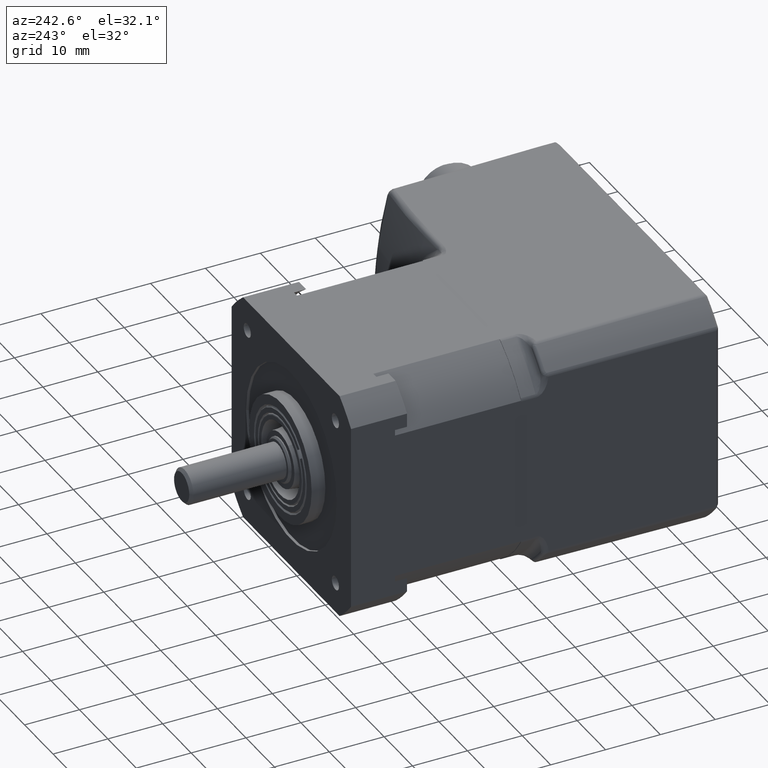
[diagram: clean part render]
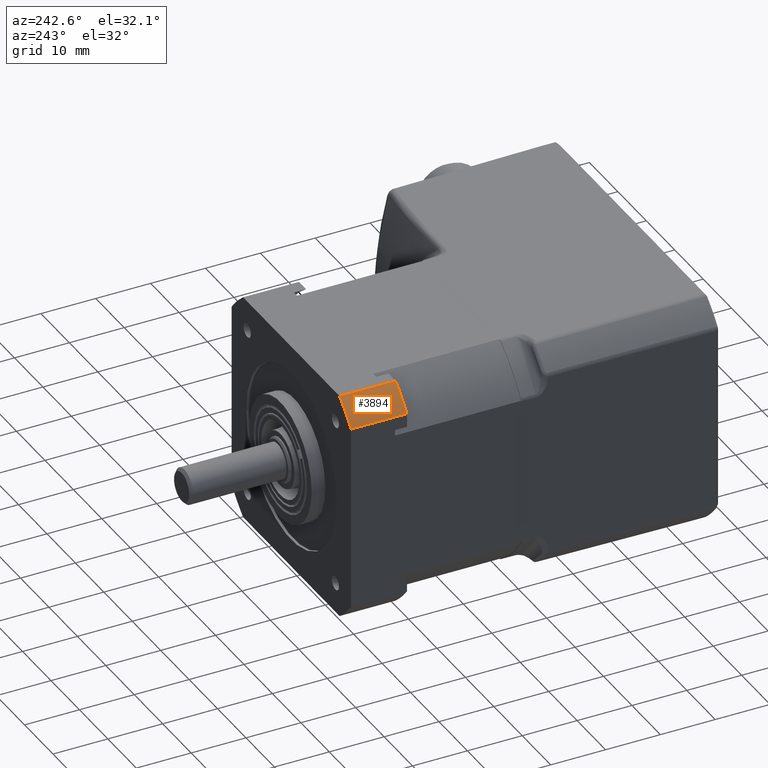
[diagram: same view with one face highlighted and labeled with its STEP entity id]
A machine part, auxiliary view. The second image highlights one B-rep face of the part: STEP entity #3894.
In plain terms, the highlighted cylindrical surface (partial cylindrical patch) has radius 27 mm, axis along (-0, 1, 0).
Its self-contained STEP definition (entity closure, byte-faithful):
#614 = DIRECTION ( 'NONE',  ( -0.000000000000000000, 1.000000000000000000, 0.000000000000000000 ) ) ;
#692 = AXIS2_PLACEMENT_3D ( 'NONE', #8617, #614, #3268 ) ;
#787 = VERTEX_POINT ( 'NONE', #4168 ) ;
#3202 = DIRECTION ( 'NONE',  ( 1.000000000000000000, 0.000000000000000000, -2.220446049250308644E-16 ) ) ;
#3268 = DIRECTION ( 'NONE',  ( 1.000000000000000000, 0.000000000000000000, -2.220446049250308644E-16 ) ) ;
#3894 = ADVANCED_FACE ( 'NONE', ( #14041 ), #8783, .T. ) ;
#4168 = CARTESIAN_POINT ( 'NONE',  ( -20.99999999999552358, 31.00000000000000711, 16.97056274848340962 ) ) ;
#4212 = EDGE_LOOP ( 'NONE', ( #15664, #16336, #7100, #8555 ) ) ;
#4942 = DIRECTION ( 'NONE',  ( 0.000000000000000000, -1.000000000000000000, -0.000000000000000000 ) ) ;
#6191 = EDGE_CURVE ( 'NONE', #787, #9155, #10091, .T. ) ;
#7100 = ORIENTED_EDGE ( 'NONE', *, *, #6191, .T. ) ;
#7235 = VERTEX_POINT ( 'NONE', #16791 ) ;
#7476 = CARTESIAN_POINT ( 'NONE',  ( -16.97056274848968016, 31.00000000000000711, 20.99999999999935341 ) ) ;
#8555 = ORIENTED_EDGE ( 'NONE', *, *, #11464, .T. ) ;
#8617 = CARTESIAN_POINT ( 'NONE',  ( -1.110223024625156540E-12, 20.80000000000001137, -1.110223024625156540E-12 ) ) ;
#8635 = CARTESIAN_POINT ( 'NONE',  ( -1.110223024625156540E-12, 31.00000000000000711, -1.110223024625156540E-12 ) ) ;
#8783 = CYLINDRICAL_SURFACE ( 'NONE', #692, 27.00000000000018829 ) ;
#9155 = VERTEX_POINT ( 'NONE', #15738 ) ;
#9159 = CARTESIAN_POINT ( 'NONE',  ( -1.110223024625156540E-12, 20.80000000000001137, -1.110223024625156540E-12 ) ) ;
#9434 = VERTEX_POINT ( 'NONE', #7476 ) ;
#9681 = AXIS2_PLACEMENT_3D ( 'NONE', #8635, #10018, #3202 ) ;
#10000 = DIRECTION ( 'NONE',  ( -0.000000000000000000, 1.000000000000000000, -0.000000000000000000 ) ) ;
#10018 = DIRECTION ( 'NONE',  ( -0.000000000000000000, 1.000000000000000000, 0.000000000000000000 ) ) ;
#10091 = LINE ( 'NONE', #15771, #13430 ) ;
#10116 = EDGE_CURVE ( 'NONE', #7235, #9434, #12549, .T. ) ;
#10463 = AXIS2_PLACEMENT_3D ( 'NONE', #9159, #11776, #17282 ) ;
#11464 = EDGE_CURVE ( 'NONE', #9155, #7235, #12434, .T. ) ;
#11635 = CIRCLE ( 'NONE', #9681, 27.00000000000018829 ) ;
#11776 = DIRECTION ( 'NONE',  ( -0.000000000000000000, 1.000000000000000000, 0.000000000000000000 ) ) ;
#12194 = VECTOR ( 'NONE', #10000, 1000.000000000000000 ) ;
#12434 = CIRCLE ( 'NONE', #10463, 27.00000000000018829 ) ;
#12549 = LINE ( 'NONE', #16659, #12194 ) ;
#13430 = VECTOR ( 'NONE', #4942, 1000.000000000000000 ) ;
#14041 = FACE_OUTER_BOUND ( 'NONE', #4212, .T. ) ;
#15311 = EDGE_CURVE ( 'NONE', #787, #9434, #11635, .T. ) ;
#15664 = ORIENTED_EDGE ( 'NONE', *, *, #10116, .T. ) ;
#15738 = CARTESIAN_POINT ( 'NONE',  ( -20.99999999999552358, 20.80000000000001137, 16.97056274848340962 ) ) ;
#15771 = CARTESIAN_POINT ( 'NONE',  ( -20.99999999998991740, 20.80000000000001137, 16.97056274849031965 ) ) ;
#16336 = ORIENTED_EDGE ( 'NONE', *, *, #15311, .F. ) ;
#16659 = CARTESIAN_POINT ( 'NONE',  ( -16.97056274850111635, 20.80000000000001137, 20.99999999999935341 ) ) ;
#16791 = CARTESIAN_POINT ( 'NONE',  ( -16.97056274848968016, 20.80000000000001137, 20.99999999999935341 ) ) ;
#17282 = DIRECTION ( 'NONE',  ( 1.000000000000000000, 0.000000000000000000, -2.220446049250308644E-16 ) ) ;